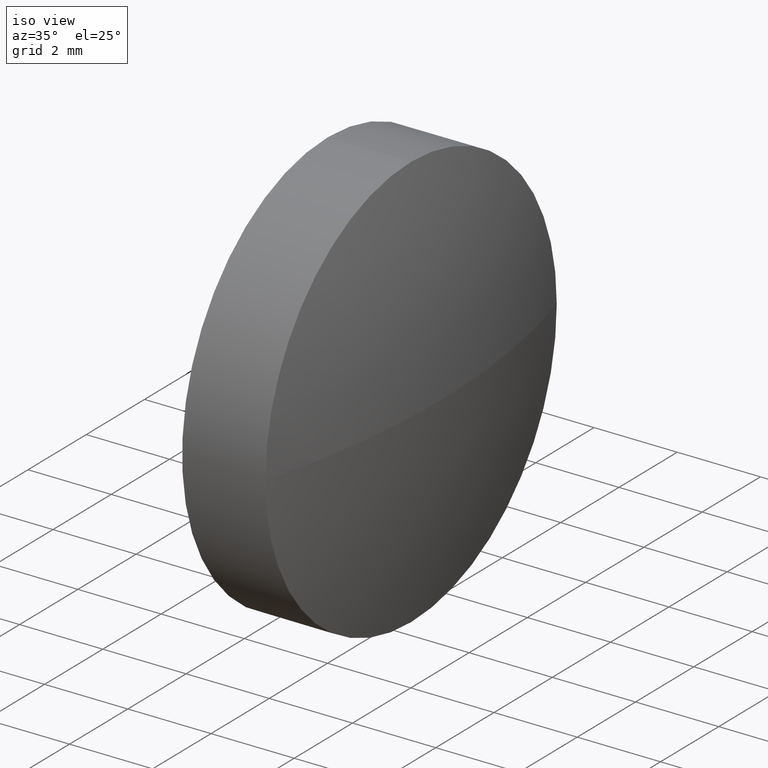
[diagram: clean part render]
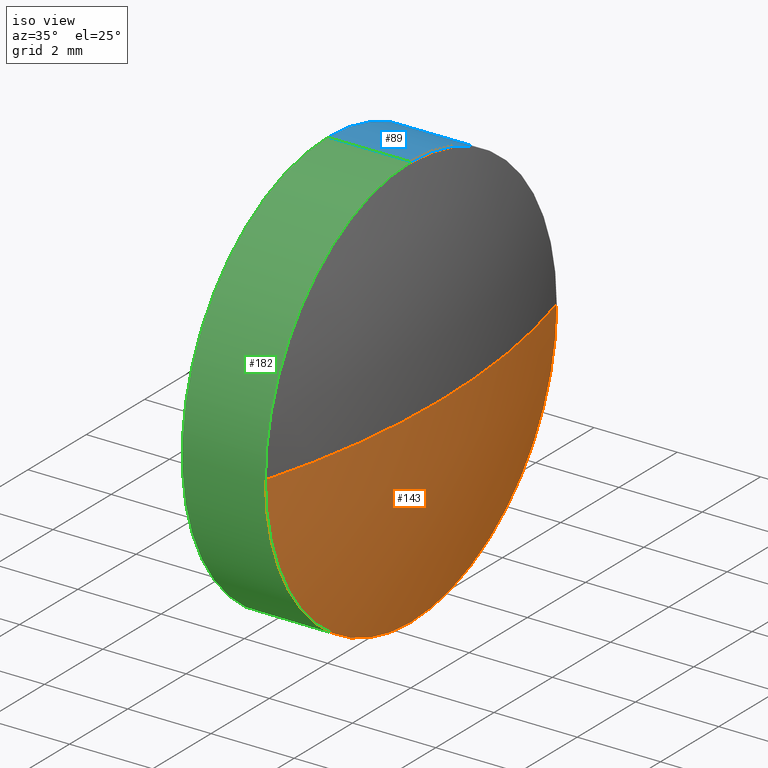
[diagram: same view with three faces highlighted in distinct colors, each labeled with its STEP entity id]
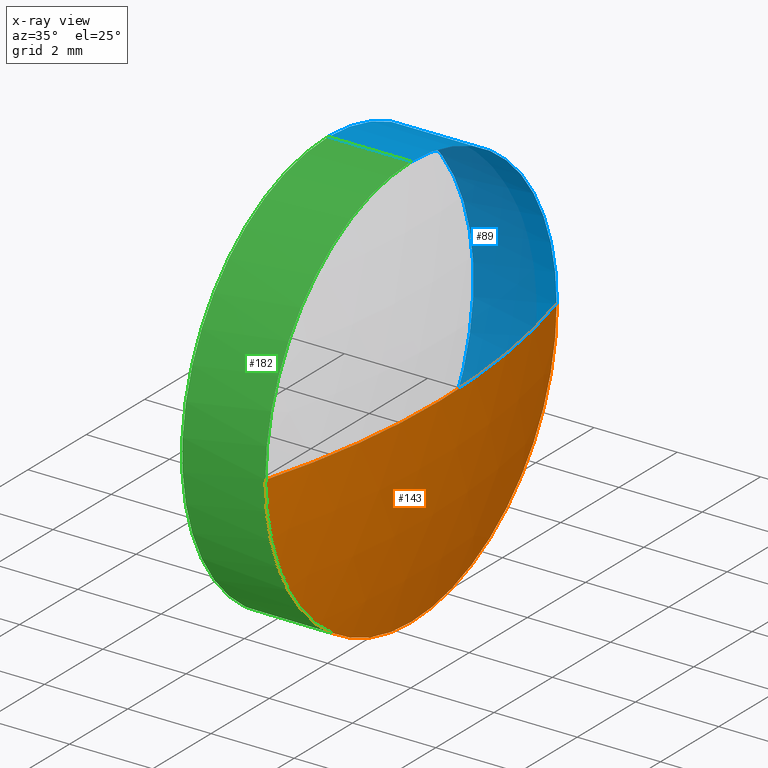
[diagram: x-ray of the same camera — body ghosted, the three highlighted faces saturated]
A machine part, iso view with three faces highlighted in distinct colors.
The next image is the same camera in x-ray (body ghosted, the three faces saturated) — at least one of them is partly hidden behind the body in this view.
Their STEP definitions:

[orange] entity #143 — the highlighted spherical surface has radius 18.2071 mm.
#1 = VERTEX_POINT ( 'NONE', #108 ) ;
#3 = AXIS2_PLACEMENT_3D ( 'NONE', #183, #86, #73 ) ;
#10 = DIRECTION ( 'NONE',  ( 0.0000000000000000000, 0.0000000000000000000, 1.000000000000000000 ) ) ;
#11 = DIRECTION ( 'NONE',  ( -1.000000000000000000, -0.0000000000000000000, -0.0000000000000000000 ) ) ;
#31 = DIRECTION ( 'NONE',  ( 0.0000000000000000000, 0.0000000000000000000, 1.000000000000000000 ) ) ;
#42 = VERTEX_POINT ( 'NONE', #177 ) ;
#44 = CIRCLE ( 'NONE', #155, 18.20714285714292300 ) ;
#48 = EDGE_CURVE ( 'NONE', #1, #145, #158, .T. ) ;
#49 = DIRECTION ( 'NONE',  ( 1.000000000000000000, 0.0000000000000000000, 0.0000000000000000000 ) ) ;
#56 = CIRCLE ( 'NONE', #69, 5.000000000000004400 ) ;
#59 = ORIENTED_EDGE ( 'NONE', *, *, #66, .F. ) ;
#62 = EDGE_CURVE ( 'NONE', #42, #76, #77, .T. ) ;
#63 = SPHERICAL_SURFACE ( 'NONE', #3, 18.20714285714293700 ) ;
#66 = EDGE_CURVE ( 'NONE', #145, #76, #56, .T. ) ;
#69 = AXIS2_PLACEMENT_3D ( 'NONE', #123, #11, #10 ) ;
#73 = DIRECTION ( 'NONE',  ( 0.0000000000000000000, 1.000000000000000000, 0.0000000000000000000 ) ) ;
#76 = VERTEX_POINT ( 'NONE', #125 ) ;
#77 = CIRCLE ( 'NONE', #146, 18.20714285714293700 ) ;
#86 = DIRECTION ( 'NONE',  ( -0.0000000000000000000, 0.0000000000000000000, -1.000000000000000000 ) ) ;
#92 = FACE_OUTER_BOUND ( 'NONE', #152, .T. ) ;
#98 = CARTESIAN_POINT ( 'NONE',  ( 434.5168142886836300, 90.12789377755979100, -5.000000000000004400 ) ) ;
#104 = ORIENTED_EDGE ( 'NONE', *, *, #48, .F. ) ;
#107 = DIRECTION ( 'NONE',  ( 0.0000000000000000000, 1.224646799147353200E-016, -1.000000000000000000 ) ) ;
#108 = CARTESIAN_POINT ( 'NONE',  ( 434.5168142886836300, 95.12789377755979100, 0.0000000000000000000 ) ) ;
#122 = EDGE_CURVE ( 'NONE', #42, #1, #44, .T. ) ;
#123 = CARTESIAN_POINT ( 'NONE',  ( 434.5168142886836300, 90.12789377755979100, 0.0000000000000000000 ) ) ;
#124 = AXIS2_PLACEMENT_3D ( 'NONE', #139, #137, #31 ) ;
#125 = CARTESIAN_POINT ( 'NONE',  ( 434.5168142886836300, 85.12789377755979100, -6.123233995736751500E-016 ) ) ;
#127 = DIRECTION ( 'NONE',  ( -0.0000000000000000000, 0.0000000000000000000, 1.000000000000000000 ) ) ;
#129 = CARTESIAN_POINT ( 'NONE',  ( 417.0096714315407100, 90.12789377755977700, 0.0000000000000000000 ) ) ;
#137 = DIRECTION ( 'NONE',  ( -1.000000000000000000, -0.0000000000000000000, -0.0000000000000000000 ) ) ;
#139 = CARTESIAN_POINT ( 'NONE',  ( 434.5168142886836300, 90.12789377755979100, 0.0000000000000000000 ) ) ;
#143 = ADVANCED_FACE ( 'NONE', ( #92 ), #63, .T. ) ;
#145 = VERTEX_POINT ( 'NONE', #98 ) ;
#146 = AXIS2_PLACEMENT_3D ( 'NONE', #167, #107, #153 ) ;
#149 = ORIENTED_EDGE ( 'NONE', *, *, #62, .T. ) ;
#152 = EDGE_LOOP ( 'NONE', ( #178, #149, #59, #104 ) ) ;
#153 = DIRECTION ( 'NONE',  ( 0.0000000000000000000, 1.000000000000000000, 1.224646799147353000E-016 ) ) ;
#155 = AXIS2_PLACEMENT_3D ( 'NONE', #129, #127, #49 ) ;
#158 = CIRCLE ( 'NONE', #124, 5.000000000000004400 ) ;
#167 = CARTESIAN_POINT ( 'NONE',  ( 417.0096714315407100, 90.12789377755977700, 0.0000000000000000000 ) ) ;
#177 = CARTESIAN_POINT ( 'NONE',  ( 435.2168142886836200, 90.12789377755977700, 0.0000000000000000000 ) ) ;
#178 = ORIENTED_EDGE ( 'NONE', *, *, #122, .F. ) ;
#183 = CARTESIAN_POINT ( 'NONE',  ( 417.0096714315407100, 90.12789377755977700, 0.0000000000000000000 ) ) ;

[blue] entity #89 — the highlighted cylindrical surface (partial cylindrical patch) has radius 5 mm, axis along (-1, -0, -0).
#1 = VERTEX_POINT ( 'NONE', #108 ) ;
#7 = ORIENTED_EDGE ( 'NONE', *, *, #55, .T. ) ;
#13 = CARTESIAN_POINT ( 'NONE',  ( 432.5168142886836300, 90.12789377755979100, 5.000000000000004400 ) ) ;
#15 = CARTESIAN_POINT ( 'NONE',  ( 434.5168142886836300, 90.12789377755979100, 0.0000000000000000000 ) ) ;
#17 = DIRECTION ( 'NONE',  ( -1.000000000000000000, -0.0000000000000000000, -0.0000000000000000000 ) ) ;
#18 = LINE ( 'NONE', #60, #120 ) ;
#23 = VERTEX_POINT ( 'NONE', #109 ) ;
#26 = AXIS2_PLACEMENT_3D ( 'NONE', #169, #170, #181 ) ;
#30 = VERTEX_POINT ( 'NONE', #180 ) ;
#31 = DIRECTION ( 'NONE',  ( 0.0000000000000000000, 0.0000000000000000000, 1.000000000000000000 ) ) ;
#34 = CARTESIAN_POINT ( 'NONE',  ( 431.3745845962391700, 90.12789377755979100, 0.0000000000000000000 ) ) ;
#41 = AXIS2_PLACEMENT_3D ( 'NONE', #34, #166, #126 ) ;
#46 = ORIENTED_EDGE ( 'NONE', *, *, #186, .F. ) ;
#48 = EDGE_CURVE ( 'NONE', #1, #145, #158, .T. ) ;
#50 = DIRECTION ( 'NONE',  ( 0.0000000000000000000, 0.0000000000000000000, 1.000000000000000000 ) ) ;
#55 = EDGE_CURVE ( 'NONE', #145, #23, #18, .T. ) ;
#60 = CARTESIAN_POINT ( 'NONE',  ( 431.3745845962391700, 90.12789377755979100, -5.000000000000004400 ) ) ;
#67 = ORIENTED_EDGE ( 'NONE', *, *, #168, .F. ) ;
#70 = DIRECTION ( 'NONE',  ( -1.000000000000000000, -0.0000000000000000000, -0.0000000000000000000 ) ) ;
#79 = ORIENTED_EDGE ( 'NONE', *, *, #102, .T. ) ;
#87 = ORIENTED_EDGE ( 'NONE', *, *, #48, .T. ) ;
#88 = CIRCLE ( 'NONE', #105, 5.000000000000004400 ) ;
#89 = ADVANCED_FACE ( 'NONE', ( #157 ), #164, .T. ) ;
#98 = CARTESIAN_POINT ( 'NONE',  ( 434.5168142886836300, 90.12789377755979100, -5.000000000000004400 ) ) ;
#102 = EDGE_CURVE ( 'NONE', #30, #1, #88, .T. ) ;
#105 = AXIS2_PLACEMENT_3D ( 'NONE', #15, #17, #50 ) ;
#108 = CARTESIAN_POINT ( 'NONE',  ( 434.5168142886836300, 95.12789377755979100, 0.0000000000000000000 ) ) ;
#109 = CARTESIAN_POINT ( 'NONE',  ( 432.5168142886836300, 90.12789377755979100, -5.000000000000004400 ) ) ;
#119 = CARTESIAN_POINT ( 'NONE',  ( 431.3745845962391700, 90.12789377755979100, 5.000000000000004400 ) ) ;
#120 = VECTOR ( 'NONE', #154, 1000.000000000000000 ) ;
#124 = AXIS2_PLACEMENT_3D ( 'NONE', #139, #137, #31 ) ;
#126 = DIRECTION ( 'NONE',  ( 0.0000000000000000000, 0.0000000000000000000, 1.000000000000000000 ) ) ;
#137 = DIRECTION ( 'NONE',  ( -1.000000000000000000, -0.0000000000000000000, -0.0000000000000000000 ) ) ;
#139 = CARTESIAN_POINT ( 'NONE',  ( 434.5168142886836300, 90.12789377755979100, 0.0000000000000000000 ) ) ;
#145 = VERTEX_POINT ( 'NONE', #98 ) ;
#147 = CIRCLE ( 'NONE', #26, 5.000000000000004400 ) ;
#154 = DIRECTION ( 'NONE',  ( -1.000000000000000000, -0.0000000000000000000, -0.0000000000000000000 ) ) ;
#156 = VECTOR ( 'NONE', #70, 1000.000000000000000 ) ;
#157 = FACE_OUTER_BOUND ( 'NONE', #185, .T. ) ;
#158 = CIRCLE ( 'NONE', #124, 5.000000000000004400 ) ;
#162 = LINE ( 'NONE', #119, #156 ) ;
#164 = CYLINDRICAL_SURFACE ( 'NONE', #41, 5.000000000000004400 ) ;
#166 = DIRECTION ( 'NONE',  ( -1.000000000000000000, -0.0000000000000000000, -0.0000000000000000000 ) ) ;
#168 = EDGE_CURVE ( 'NONE', #174, #23, #147, .T. ) ;
#169 = CARTESIAN_POINT ( 'NONE',  ( 432.5168142886836300, 90.12789377755979100, 0.0000000000000000000 ) ) ;
#170 = DIRECTION ( 'NONE',  ( -1.000000000000000000, -0.0000000000000000000, -0.0000000000000000000 ) ) ;
#174 = VERTEX_POINT ( 'NONE', #13 ) ;
#180 = CARTESIAN_POINT ( 'NONE',  ( 434.5168142886836300, 90.12789377755979100, 5.000000000000004400 ) ) ;
#181 = DIRECTION ( 'NONE',  ( 0.0000000000000000000, 0.0000000000000000000, 1.000000000000000000 ) ) ;
#185 = EDGE_LOOP ( 'NONE', ( #87, #7, #67, #46, #79 ) ) ;
#186 = EDGE_CURVE ( 'NONE', #30, #174, #162, .T. ) ;

[green] entity #182 — the highlighted cylindrical surface (partial cylindrical patch) has radius 5 mm, axis along (-1, -0, -0).
#9 = CARTESIAN_POINT ( 'NONE',  ( 434.5168142886836300, 90.12789377755979100, 0.0000000000000000000 ) ) ;
#10 = DIRECTION ( 'NONE',  ( 0.0000000000000000000, 0.0000000000000000000, 1.000000000000000000 ) ) ;
#11 = DIRECTION ( 'NONE',  ( -1.000000000000000000, -0.0000000000000000000, -0.0000000000000000000 ) ) ;
#13 = CARTESIAN_POINT ( 'NONE',  ( 432.5168142886836300, 90.12789377755979100, 5.000000000000004400 ) ) ;
#16 = EDGE_LOOP ( 'NONE', ( #141, #100, #175, #40, #54 ) ) ;
#18 = LINE ( 'NONE', #60, #120 ) ;
#21 = FACE_OUTER_BOUND ( 'NONE', #16, .T. ) ;
#23 = VERTEX_POINT ( 'NONE', #109 ) ;
#30 = VERTEX_POINT ( 'NONE', #180 ) ;
#37 = DIRECTION ( 'NONE',  ( -1.000000000000000000, -0.0000000000000000000, -0.0000000000000000000 ) ) ;
#40 = ORIENTED_EDGE ( 'NONE', *, *, #186, .T. ) ;
#54 = ORIENTED_EDGE ( 'NONE', *, *, #132, .F. ) ;
#55 = EDGE_CURVE ( 'NONE', #145, #23, #18, .T. ) ;
#56 = CIRCLE ( 'NONE', #69, 5.000000000000004400 ) ;
#58 = EDGE_CURVE ( 'NONE', #76, #30, #131, .T. ) ;
#60 = CARTESIAN_POINT ( 'NONE',  ( 431.3745845962391700, 90.12789377755979100, -5.000000000000004400 ) ) ;
#64 = DIRECTION ( 'NONE',  ( 0.0000000000000000000, 0.0000000000000000000, 1.000000000000000000 ) ) ;
#65 = CIRCLE ( 'NONE', #163, 5.000000000000004400 ) ;
#66 = EDGE_CURVE ( 'NONE', #145, #76, #56, .T. ) ;
#69 = AXIS2_PLACEMENT_3D ( 'NONE', #123, #11, #10 ) ;
#70 = DIRECTION ( 'NONE',  ( -1.000000000000000000, -0.0000000000000000000, -0.0000000000000000000 ) ) ;
#75 = CARTESIAN_POINT ( 'NONE',  ( 432.5168142886836300, 90.12789377755979100, 0.0000000000000000000 ) ) ;
#76 = VERTEX_POINT ( 'NONE', #125 ) ;
#80 = AXIS2_PLACEMENT_3D ( 'NONE', #144, #37, #64 ) ;
#83 = DIRECTION ( 'NONE',  ( 0.0000000000000000000, 0.0000000000000000000, 1.000000000000000000 ) ) ;
#93 = DIRECTION ( 'NONE',  ( -1.000000000000000000, -0.0000000000000000000, -0.0000000000000000000 ) ) ;
#97 = AXIS2_PLACEMENT_3D ( 'NONE', #9, #93, #121 ) ;
#98 = CARTESIAN_POINT ( 'NONE',  ( 434.5168142886836300, 90.12789377755979100, -5.000000000000004400 ) ) ;
#100 = ORIENTED_EDGE ( 'NONE', *, *, #66, .T. ) ;
#109 = CARTESIAN_POINT ( 'NONE',  ( 432.5168142886836300, 90.12789377755979100, -5.000000000000004400 ) ) ;
#114 = CYLINDRICAL_SURFACE ( 'NONE', #80, 5.000000000000004400 ) ;
#119 = CARTESIAN_POINT ( 'NONE',  ( 431.3745845962391700, 90.12789377755979100, 5.000000000000004400 ) ) ;
#120 = VECTOR ( 'NONE', #154, 1000.000000000000000 ) ;
#121 = DIRECTION ( 'NONE',  ( 0.0000000000000000000, 0.0000000000000000000, 1.000000000000000000 ) ) ;
#123 = CARTESIAN_POINT ( 'NONE',  ( 434.5168142886836300, 90.12789377755979100, 0.0000000000000000000 ) ) ;
#125 = CARTESIAN_POINT ( 'NONE',  ( 434.5168142886836300, 85.12789377755979100, -6.123233995736751500E-016 ) ) ;
#131 = CIRCLE ( 'NONE', #97, 5.000000000000004400 ) ;
#132 = EDGE_CURVE ( 'NONE', #23, #174, #65, .T. ) ;
#141 = ORIENTED_EDGE ( 'NONE', *, *, #55, .F. ) ;
#144 = CARTESIAN_POINT ( 'NONE',  ( 431.3745845962391700, 90.12789377755979100, 0.0000000000000000000 ) ) ;
#145 = VERTEX_POINT ( 'NONE', #98 ) ;
#154 = DIRECTION ( 'NONE',  ( -1.000000000000000000, -0.0000000000000000000, -0.0000000000000000000 ) ) ;
#156 = VECTOR ( 'NONE', #70, 1000.000000000000000 ) ;
#162 = LINE ( 'NONE', #119, #156 ) ;
#163 = AXIS2_PLACEMENT_3D ( 'NONE', #75, #171, #83 ) ;
#171 = DIRECTION ( 'NONE',  ( -1.000000000000000000, -0.0000000000000000000, -0.0000000000000000000 ) ) ;
#174 = VERTEX_POINT ( 'NONE', #13 ) ;
#175 = ORIENTED_EDGE ( 'NONE', *, *, #58, .T. ) ;
#180 = CARTESIAN_POINT ( 'NONE',  ( 434.5168142886836300, 90.12789377755979100, 5.000000000000004400 ) ) ;
#182 = ADVANCED_FACE ( 'NONE', ( #21 ), #114, .T. ) ;
#186 = EDGE_CURVE ( 'NONE', #30, #174, #162, .T. ) ;